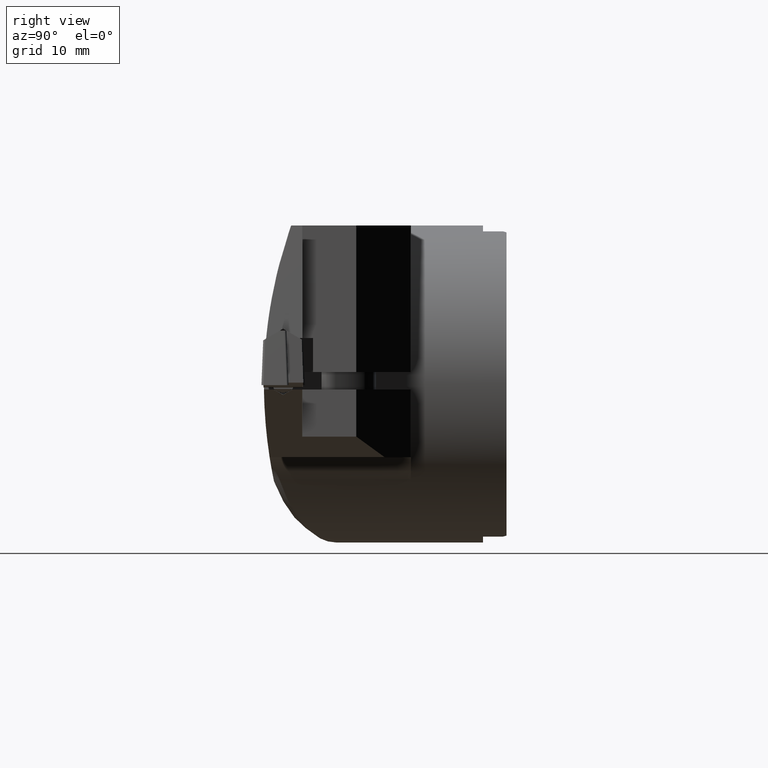
[diagram: clean part render]
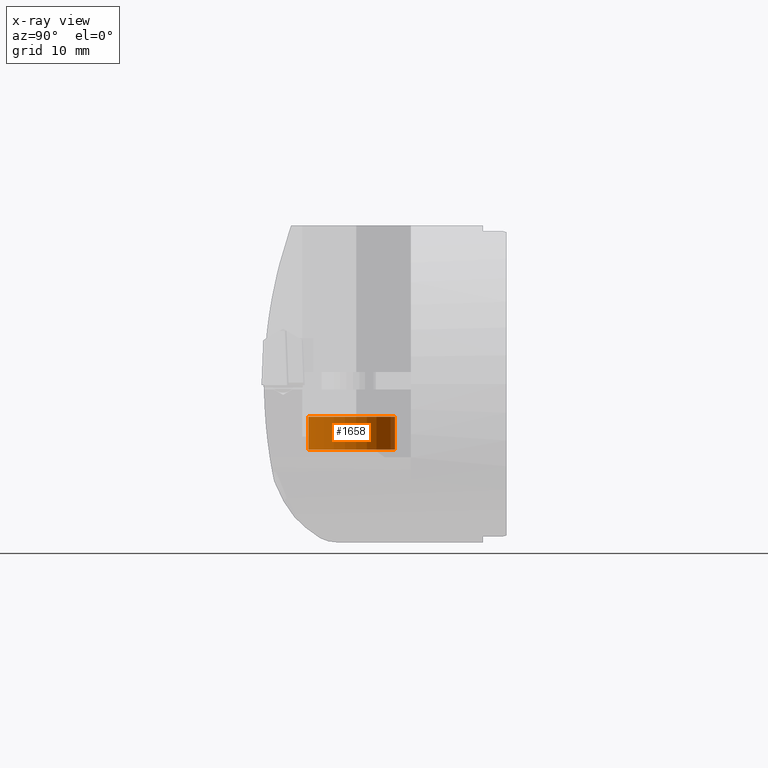
[diagram: x-ray — body ghosted, one internal face saturated and labeled with its STEP entity id]
A machine part, right view, then the same camera in x-ray: the body is ghosted and one INTERNAL B-rep face — a face not visible from any outside direction — is saturated and labeled: STEP entity #1658.
In plain terms, the highlighted cylindrical surface (partial cylindrical patch) has radius 4.25 mm, axis along (0, 0, -1).
Its self-contained STEP definition (entity closure, byte-faithful):
#774=EDGE_CURVE('NONE',#2026,#2194,#2241,.T.);
#834=EDGE_CURVE('NONE',#2194,#2000,#2311,.T.);
#1212=EDGE_CURVE('NONE',#1246,#2000,#2727,.T.);
#1246=VERTEX_POINT('NONE',#2765);
#1288=EDGE_CURVE('NONE',#1246,#2026,#2809,.T.);
#1658=ADVANCED_FACE('NONE',(#3212),#3213,.T.);
#2000=VERTEX_POINT('NONE',#3592);
#2026=VERTEX_POINT('NONE',#3621);
#2194=VERTEX_POINT('NONE',#3805);
#2241=LINE('',#3852,#3853);
#2311=CIRCLE('',#3990,4.25);
#2727=LINE('',#4769,#4770);
#2765=CARTESIAN_POINT('',(19.8750000000001,-10.769392033916,-3.0));
#2809=CIRCLE('',#4918,4.25);
#3212=FACE_OUTER_BOUND('',#5722,.T.);
#3213=CYLINDRICAL_SURFACE('',#5723,4.25);
#3592=CARTESIAN_POINT('',(19.8750000000001,-10.769392033916,-6.0));
#3621=CARTESIAN_POINT('',(24.1250000000001,-18.1306079660837,-3.00000000000001));
#3805=CARTESIAN_POINT('',(24.1250000000001,-18.1306079660837,-6.0));
#3852=CARTESIAN_POINT('',(24.1250000000001,-18.1306079660837,-29.0792492179353));
#3853=VECTOR('',#6947,1000.0);
#3990=AXIS2_PLACEMENT_3D('',#7039,#7040,#7041);
#4769=CARTESIAN_POINT('',(19.8750000000001,-10.769392033916,-29.0792492179353));
#4770=VECTOR('',#7483,1000.0);
#4918=AXIS2_PLACEMENT_3D('',#7554,#7555,#7556);
#5722=EDGE_LOOP('',(#7961,#7962,#7963,#7964));
#5723=AXIS2_PLACEMENT_3D('',#7965,#7966,#7967);
#6947=DIRECTION('',(2.50792477802524E-016,1.0720261361309E-015,-1.0));
#7039=CARTESIAN_POINT('',(22.0000000000001,-14.4499999999999,-6.0));
#7040=DIRECTION('',(-2.50792477802524E-016,-1.0720261361309E-015,1.0));
#7041=DIRECTION('',(-0.500000000000004,0.866025403784436,8.03005628508967E-016));
#7483=DIRECTION('',(2.50792477802524E-016,1.0720261361309E-015,-1.0));
#7554=CARTESIAN_POINT('',(22.0000000000001,-14.4499999999999,-3.0));
#7555=DIRECTION('',(2.50792477802524E-016,1.0720261361309E-015,-1.0));
#7556=DIRECTION('',(0.500000000000004,-0.866025403784436,-8.03005628508967E-016));
#7961=ORIENTED_EDGE('',*,*,#1212,.F.);
#7962=ORIENTED_EDGE('',*,*,#1288,.T.);
#7963=ORIENTED_EDGE('',*,*,#774,.T.);
#7964=ORIENTED_EDGE('',*,*,#834,.T.);
#7965=CARTESIAN_POINT('',(22.0000000000001,-14.4499999999999,-29.0792492179353));
#7966=DIRECTION('',(2.50792477802524E-016,1.0720261361309E-015,-1.0));
#7967=DIRECTION('',(0.500000000000004,-0.866025403784436,-8.03005628508967E-016));